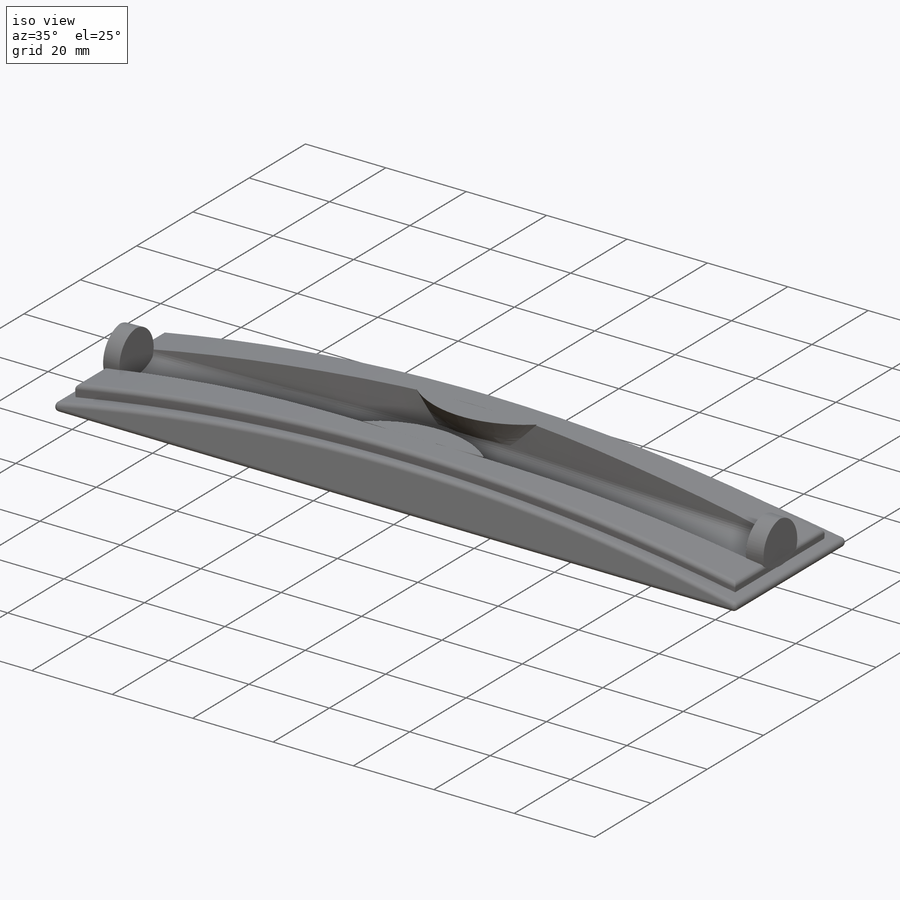
[diagram: iso view]
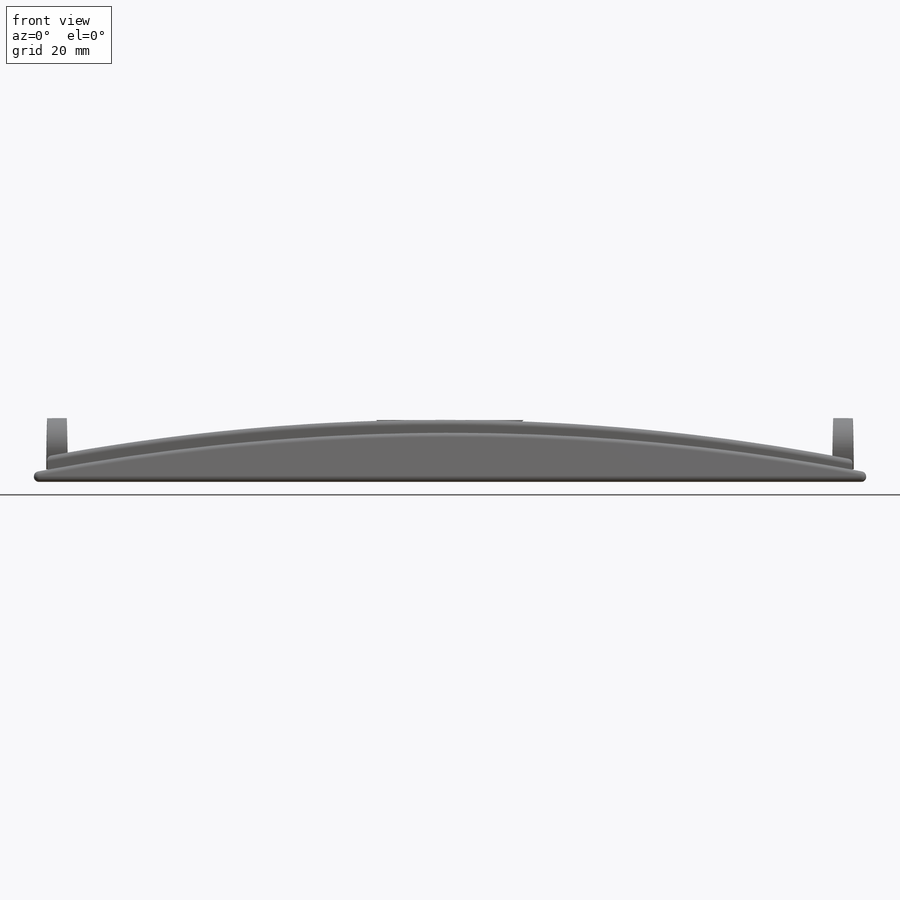
[diagram: front view]
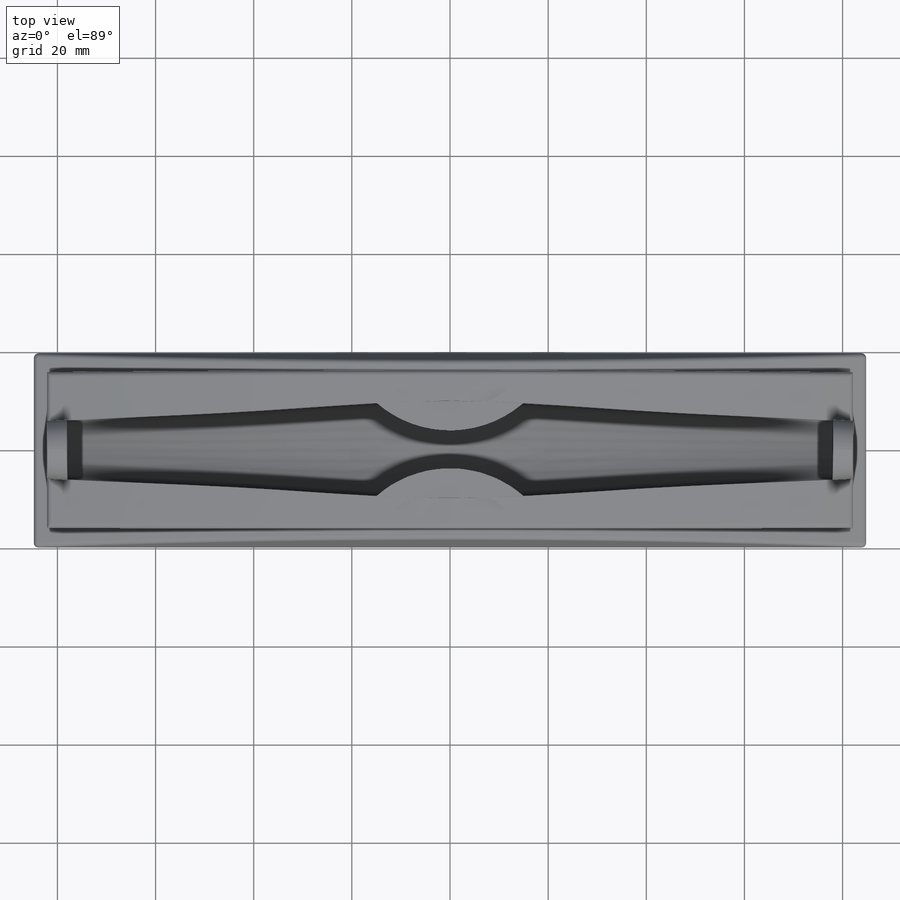
[diagram: top view]
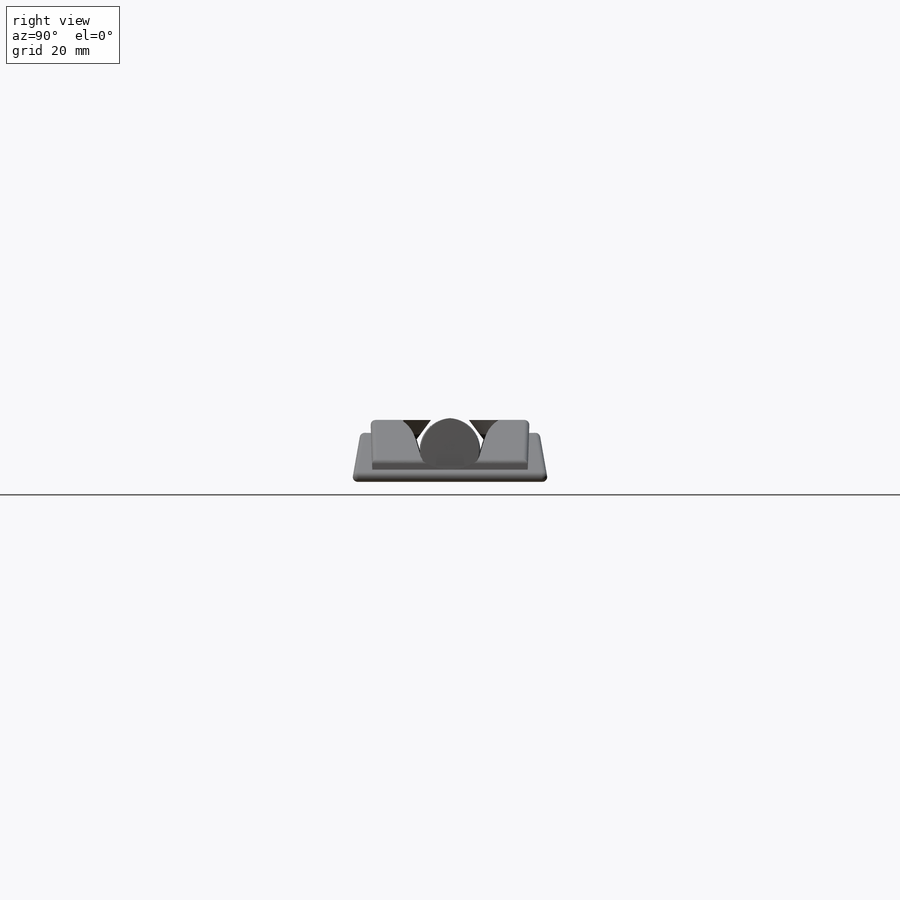
[diagram: right view]
SOLIDWORKS PART (.sldprt)
format: sldprt  version: not decoded by parser v0  size: 774,656 bytes
history: native  units: mm
features: sketch x13, plane x10, fillet x5, extrude x3, cut_extrude x2, material x1, mirror x1, shell x1 (+12 scaffold rows collapsed)
feature tree (48):
  scaffold x12  (default folders/planes/origin — collapsed)
  material  "Material <not specified>"
  sketch  "Sketch1"  dims[D1=170.0mm D2=40.0mm]
  extrude  "Boss-Extrude1"  Depth=10mm
  sketch  "Sketch2"  dims[D1=2.0mm D2=2.0mm]
  cut_extrude  "Cut-Extrude2"  Depth=100mm
  plane  "Plane1"  Offset=20mm
  sketch  "Sketch3"  dims[D1=2.0mm D2=3.0mm]
  extrude  "Boss-Extrude2"  [1 undecoded]
  sketch  "Sketch5"  dims[c1.D1=3.0mm c1.D2=60.0deg c2.D2=3.0mm c3.D2=130.0deg]
  cut_extrude  "Cut-Extrude3"  Depth=100mm
  sketch  "Sketch6"  dims[c1.D1=10.0mm c1.D2=6.0mm c1.D3=6.0mm c2.D1=~19.830817mm]
  plane  "Plane2"  Offset=40mm
  sketch  "Sketch7"  dims[D1=8.0mm D2=8.0mm]
  plane  "Plane3"  Offset=82.2mm
  sketch  "Sketch8"  dims[D1=10.0mm D2=10.0mm]
  plane  "Plane4"  Offset=82.2mm
  sketch  "Sketch9"
  plane  "Plane5"  Offset=40mm
  sketch  "Sketch10"
  plane  "Plane6"  Offset=4.55mm
  sketch  "Sketch13"
  plane  "Plane8"  Offset=13mm
  sketch  "Sketch16"  dims[D1=4.0mm D2=4.0mm]
  extrude  "Boss-Extrude7"  [1 undecoded]
  fillet  "Fillet2"  Radius=6.5mm
  fillet  "Fillet3"  Radius=6.5mm
  plane  "Plane10"  Offset=12.6mm
  sketch  "Sketch22"  dims[D1=15.0mm D2=15.0mm]
  plane  "Plane11"  Offset=6mm
  sketch  "Sketch23"
  plane  "Plane12"  Offset=0mm
  mirror  "Mirror11"
  fillet  "Fillet7"  Radius=1mm
  fillet  "Fillet8"  Radius=1mm
  fillet  "Fillet9"  Radius=2mm
  shell  "Shell2"  Thickness=0.01mm
decode coverage: 18 of 25 modeling features carry decoded parameters
note: ~ marks probable driven/reference dimensions
note: 2 parameter values undecoded
note: suppression state not decoded; provenance and decode notes live in map.json
